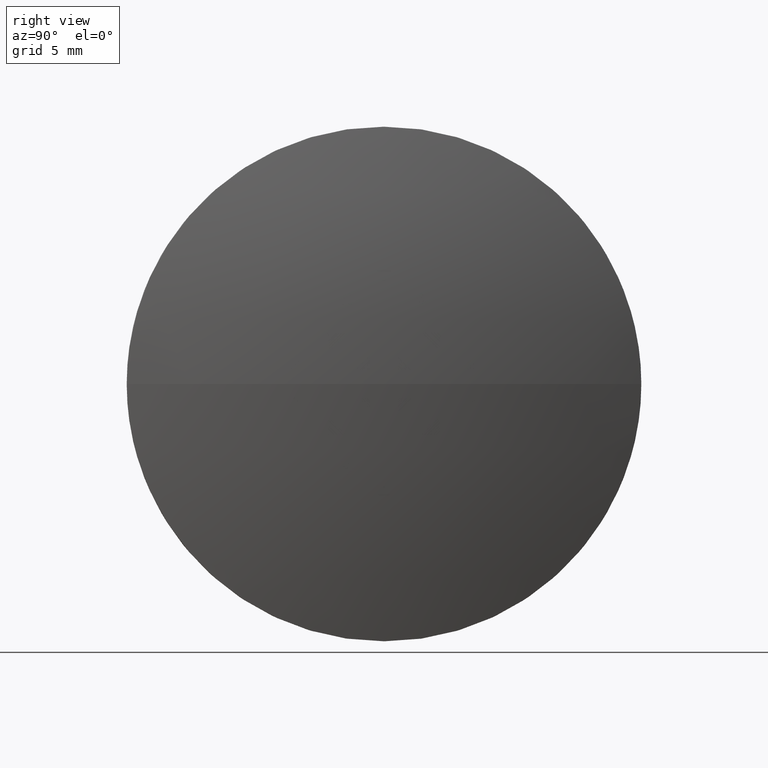
[diagram: clean part render]
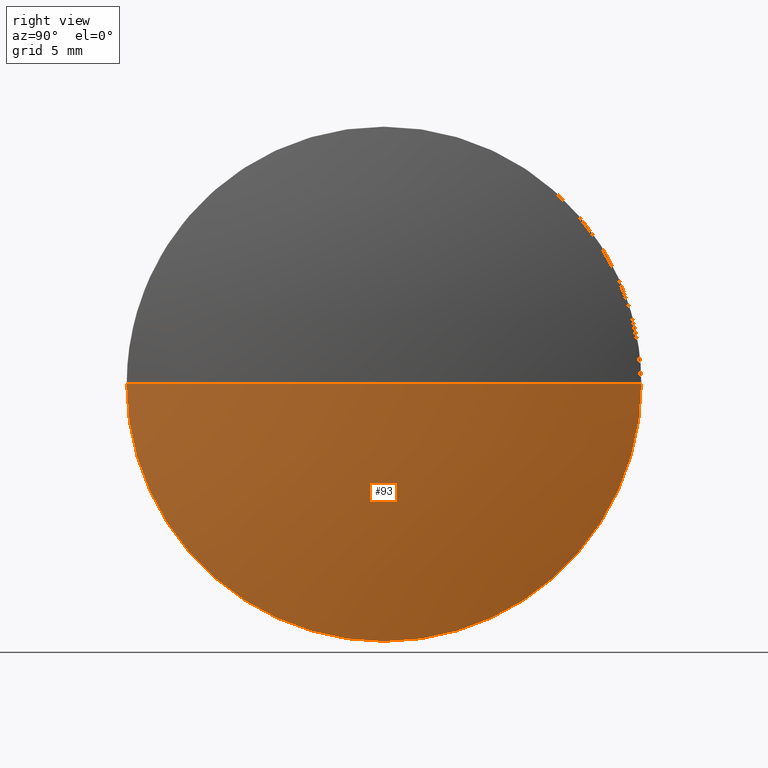
[diagram: same view with one face highlighted and labeled with its STEP entity id]
A machine part, right view. The second image highlights one B-rep face of the part: STEP entity #93.
In plain terms, the highlighted spherical surface has radius 51.5005 mm.
Its self-contained STEP definition (entity closure, byte-faithful):
#1 = ORIENTED_EDGE ( 'NONE', *, *, #94, .F. ) ;
#3 = CIRCLE ( 'NONE', #48, 12.50000000000000400 ) ;
#7 = CARTESIAN_POINT ( 'NONE',  ( 413.9707510212638200, 36.41570885204537000, 0.0000000000000000000 ) ) ;
#11 = VERTEX_POINT ( 'NONE', #134 ) ;
#12 = EDGE_CURVE ( 'NONE', #167, #11, #3, .T. ) ;
#16 = ORIENTED_EDGE ( 'NONE', *, *, #12, .F. ) ;
#26 = DIRECTION ( 'NONE',  ( 0.0000000000000000000, 1.000000000000000000, 1.224646799147353200E-016 ) ) ;
#31 = DIRECTION ( 'NONE',  ( 0.0000000000000000000, 0.0000000000000000000, 1.000000000000000000 ) ) ;
#33 = DIRECTION ( 'NONE',  ( 0.0000000000000000000, 1.000000000000000000, 0.0000000000000000000 ) ) ;
#37 = FACE_OUTER_BOUND ( 'NONE', #170, .T. ) ;
#41 = AXIS2_PLACEMENT_3D ( 'NONE', #147, #72, #33 ) ;
#44 = SPHERICAL_SURFACE ( 'NONE', #41, 51.50051948051955000 ) ;
#45 = ORIENTED_EDGE ( 'NONE', *, *, #186, .T. ) ;
#48 = AXIS2_PLACEMENT_3D ( 'NONE', #145, #97, #31 ) ;
#49 = CIRCLE ( 'NONE', #85, 12.50000000000000400 ) ;
#50 = CARTESIAN_POINT ( 'NONE',  ( 412.4307510212638000, 48.91570885204540500, 0.0000000000000000000 ) ) ;
#51 = AXIS2_PLACEMENT_3D ( 'NONE', #99, #135, #112 ) ;
#61 = VERTEX_POINT ( 'NONE', #50 ) ;
#62 = DIRECTION ( 'NONE',  ( 0.0000000000000000000, 0.0000000000000000000, 1.000000000000000000 ) ) ;
#72 = DIRECTION ( 'NONE',  ( -0.0000000000000000000, 0.0000000000000000000, -1.000000000000000000 ) ) ;
#75 = AXIS2_PLACEMENT_3D ( 'NONE', #182, #171, #26 ) ;
#77 = DIRECTION ( 'NONE',  ( -1.000000000000000000, -0.0000000000000000000, -0.0000000000000000000 ) ) ;
#79 = VERTEX_POINT ( 'NONE', #7 ) ;
#85 = AXIS2_PLACEMENT_3D ( 'NONE', #117, #77, #62 ) ;
#93 = ADVANCED_FACE ( 'NONE', ( #37 ), #44, .T. ) ;
#94 = EDGE_CURVE ( 'NONE', #79, #61, #119, .T. ) ;
#97 = DIRECTION ( 'NONE',  ( -1.000000000000000000, -0.0000000000000000000, -0.0000000000000000000 ) ) ;
#99 = CARTESIAN_POINT ( 'NONE',  ( 362.4702315407442400, 36.41570885204537000, 0.0000000000000000000 ) ) ;
#106 = CIRCLE ( 'NONE', #75, 51.50051948051955000 ) ;
#112 = DIRECTION ( 'NONE',  ( 1.000000000000000000, 0.0000000000000000000, 0.0000000000000000000 ) ) ;
#117 = CARTESIAN_POINT ( 'NONE',  ( 412.4307510212638000, 36.41570885204544100, 0.0000000000000000000 ) ) ;
#119 = CIRCLE ( 'NONE', #51, 51.50051948051953600 ) ;
#134 = CARTESIAN_POINT ( 'NONE',  ( 412.4307510212638000, 23.91570885204540200, -1.530808498934187800E-015 ) ) ;
#135 = DIRECTION ( 'NONE',  ( -0.0000000000000000000, 0.0000000000000000000, 1.000000000000000000 ) ) ;
#145 = CARTESIAN_POINT ( 'NONE',  ( 412.4307510212638000, 36.41570885204544100, 0.0000000000000000000 ) ) ;
#147 = CARTESIAN_POINT ( 'NONE',  ( 362.4702315407442400, 36.41570885204537000, 0.0000000000000000000 ) ) ;
#160 = ORIENTED_EDGE ( 'NONE', *, *, #174, .F. ) ;
#167 = VERTEX_POINT ( 'NONE', #175 ) ;
#170 = EDGE_LOOP ( 'NONE', ( #1, #45, #16, #160 ) ) ;
#171 = DIRECTION ( 'NONE',  ( 0.0000000000000000000, 1.224646799147353200E-016, -1.000000000000000000 ) ) ;
#174 = EDGE_CURVE ( 'NONE', #61, #167, #49, .T. ) ;
#175 = CARTESIAN_POINT ( 'NONE',  ( 412.4307510212638000, 36.41570885204544100, -12.50000000000000400 ) ) ;
#182 = CARTESIAN_POINT ( 'NONE',  ( 362.4702315407442400, 36.41570885204537000, 0.0000000000000000000 ) ) ;
#186 = EDGE_CURVE ( 'NONE', #79, #11, #106, .T. ) ;